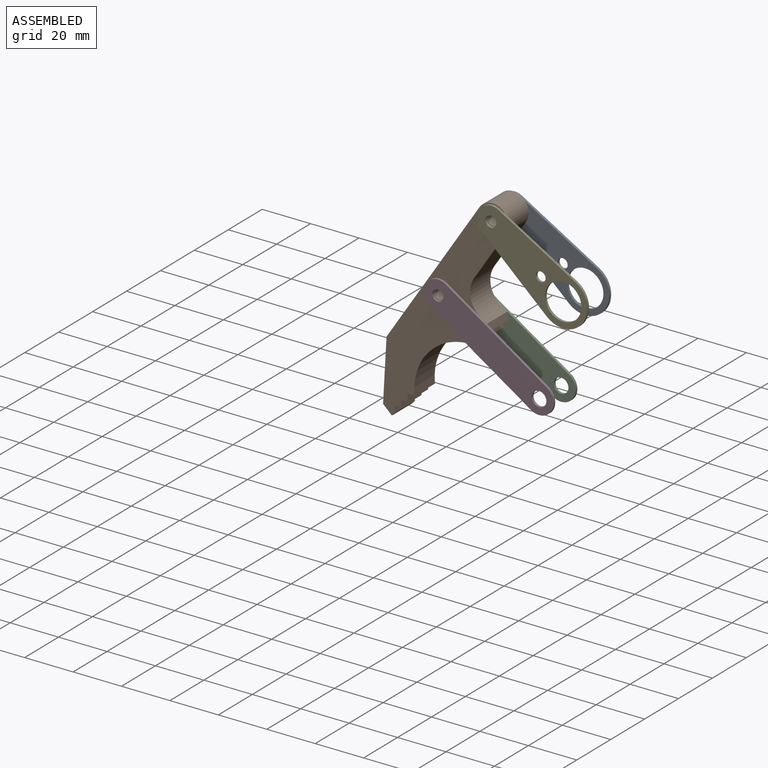
[diagram: assembled view]
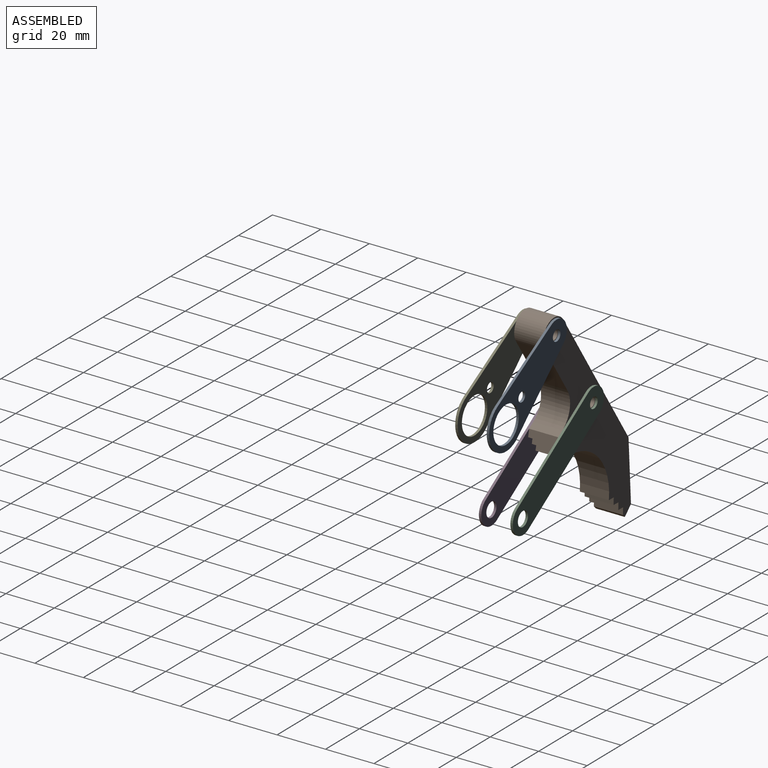
[diagram: assembled view, second angle]
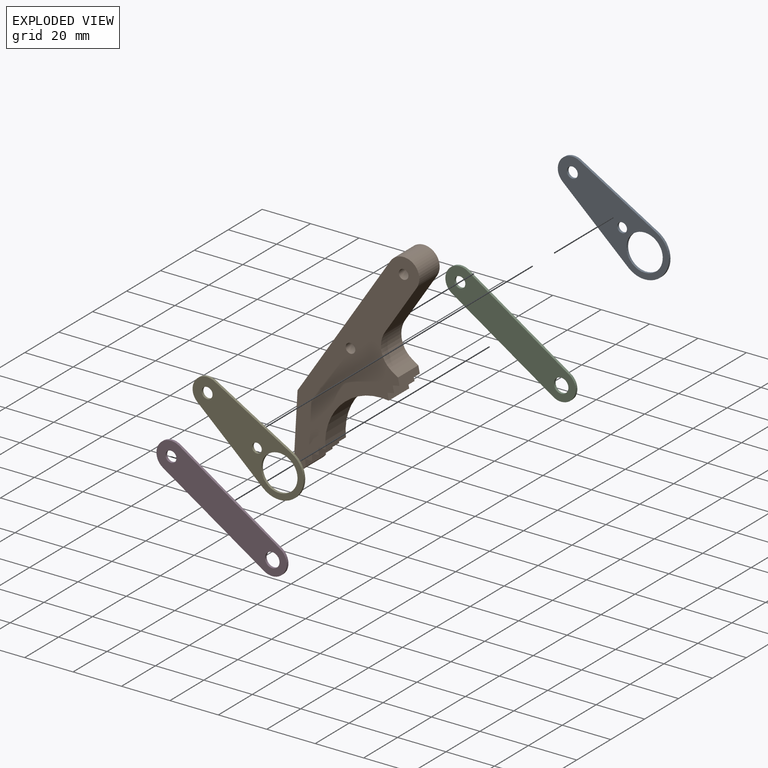
[diagram: exploded view]
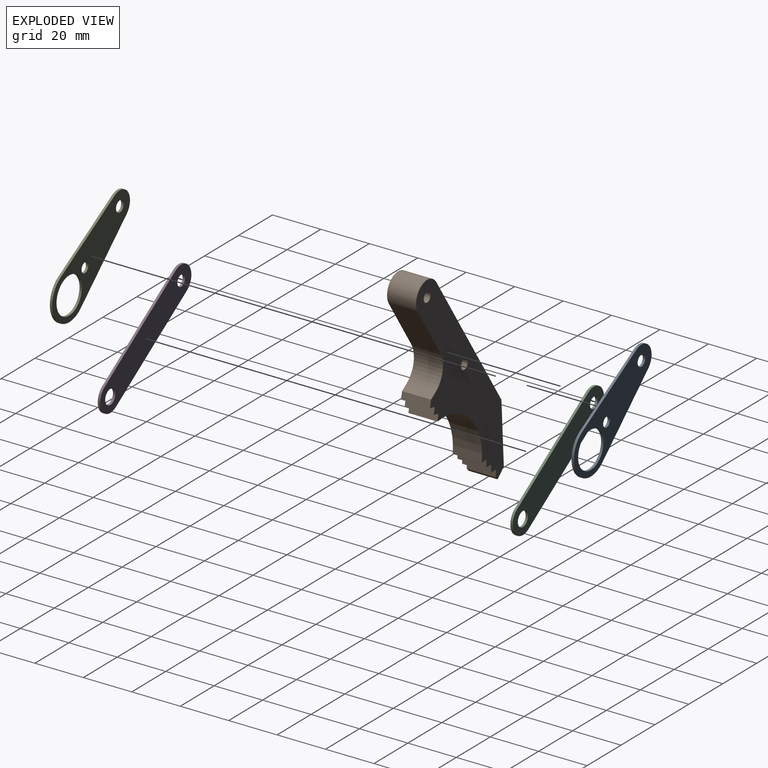
[diagram: exploded view, second angle]
ASSEMBLY  parts=5 mates=4
PART A: 9 faces, bbox 53x1x20 mm
  f0: cylinder r=10mm len=20mm, axis (0,-1,0), area 33.6mm2, adj f1,f5,f7,f8
  f1: plane 36.57x3.98mm, normal (-0.11,0,0.99), area 36.8mm2, adj f0,f2,f7,f8
  f2: cylinder r=6mm len=11.93mm, axis (0,-1,0), area 17.5mm2, adj f1,f5,f7,f8
  f3: cylinder r=2.25mm len=4.5mm, axis (0,-1,0), area 14.1mm2, adj f7,f8
  f4: cylinder r=7.5mm len=15mm, axis (0,-1,0), area 47.1mm2, adj f7,f8
  f5: plane 36.57x3.98mm, normal (-0.11,0,-0.99), area 36.8mm2, adj f0,f2,f7,f8
  f6: cylinder r=2mm len=4mm, axis (0,-1,0), area 12.6mm2, adj f7,f8
  f7: plane 53x20mm, normal (0,1,0), area 603.9mm2, adj f0,f1,f2,f3,f4,f5,f6
  f8: plane 53x20mm, normal (0,-1,0), area 603.9mm2, adj f0,f1,f2,f3,f4,f5,f6
PART B: 24 faces, bbox 28.1x12x99.5 mm
  f0: plane 12x2.35mm, normal (0.83,0,0.56), area 33.9mm2, adj f1,f20,f22,f23
  f1: plane 12x2.35mm, normal (0.56,0,-0.83), area 33.9mm2, adj f0,f2,f22,f23
  f2: cylinder r=23mm len=35.45mm, axis (0,-1,0), area 502.9mm2, adj f1,f3,f22,f23
  f3: plane 12x2mm, normal (0.71,0,0.71), area 33.9mm2, adj f2,f4,f22,f23
  f4: plane 12x2mm, normal (0.71,0,-0.71), area 33.9mm2, adj f3,f5,f22,f23
  f5: plane 12x2mm, normal (0.71,0,0.71), area 33.9mm2, adj f4,f6,f22,f23
  f6: plane 12x2mm, normal (0.71,0,-0.71), area 33.9mm2, adj f5,f7,f22,f23
  f7: plane 12x2.12mm, normal (0.71,0,0.71), area 36mm2, adj f6,f8,f22,f23
  f8: plane 12x3mm, normal (0,0,1), area 36mm2, adj f7,f9,f22,f23
  f9: cylinder r=10mm len=12mm, axis (0,-1,0), area 188.5mm2, adj f8,f10,f22,f23
  f10: plane 24x12mm, normal (1,0,0), area 288mm2, adj f9,f11,f22,f23
  f11: cylinder r=6.5mm len=13mm, axis (0,-1,0), area 245mm2, adj f10,f12,f22,f23
  f12: plane 70x12mm, normal (-1,0,0), area 840mm2, adj f11,f13,f22,f23
  f13: plane 22.08x12.75mm, normal (-0.87,0,-0.5), area 306mm2, adj f12,f14,f22,f23
  f14: plane 12x4.92mm, normal (-0.17,0,-0.98), area 60mm2, adj f13,f15,f22,f23
  f15: plane 12x1.58mm, normal (0.98,0,-0.17), area 19.2mm2, adj f14,f16,f22,f23
  f16: plane 12x2.32mm, normal (0.82,0,0.57), area 33.9mm2, adj f15,f17,f22,f23
  f17: plane 12x2.32mm, normal (0.57,0,-0.82), area 33.9mm2, adj f16,f18,f22,f23
  f18: plane 12x2.32mm, normal (0.82,0,0.57), area 33.9mm2, adj f17,f20,f22,f23
  f19: cylinder r=2mm len=12mm, axis (0,-1,0), area 150.8mm2, adj f22,f23
  f20: plane 12x2.32mm, normal (0.57,0,-0.82), area 33.9mm2, adj f0,f18,f22,f23
  f21: cylinder r=2mm len=12mm, axis (0,-1,0), area 150.8mm2, adj f22,f23
  f22: plane 99.45x28.12mm, normal (0,1,0), area 1494.7mm2, adj f0,f1,f2,f3,f4,f5,f6,f7
  f23: plane 99.45x28.12mm, normal (0,-1,0), area 1494.7mm2, adj f0,f1,f2,f3,f4,f5,f6,f7
PART C: 8 faces, bbox 62x1x12 mm
  f0: plane 50x1mm, normal (0,0,1), area 50mm2, adj f1,f5,f6,f7
  f1: cylinder r=6mm len=12mm, axis (0,-1,0), area 18.8mm2, adj f0,f2,f6,f7
  f2: plane 50x1mm, normal (0,0,-1), area 50mm2, adj f1,f5,f6,f7
  f3: cylinder r=2.25mm len=4.5mm, axis (0,-1,0), area 14.1mm2, adj f6,f7
  f4: cylinder r=3mm len=6mm, axis (0,-1,0), area 18.8mm2, adj f6,f7
  f5: cylinder r=6mm len=12mm, axis (0,-1,0), area 18.8mm2, adj f0,f2,f6,f7
  f6: plane 62x12mm, normal (0,1,0), area 668.9mm2, adj f0,f1,f2,f3,f4,f5
  f7: plane 62x12mm, normal (0,-1,0), area 668.9mm2, adj f0,f1,f2,f3,f4,f5
PART D: same geometry as C
PART E: same geometry as A
PLACE A rot(axis=(0,1,0),36.2deg) t=(44.42,18.64,-29.92)mm
PLACE B rot(axis=(0,1,0),33.2deg) t=(14.58,6.64,-8.04)mm
PLACE C rot(axis=(0,1,0),33.2deg) t=(-7.35,18.64,-41.5)mm
PLACE D rot(axis=(0,1,0),33.2deg) t=(-7.35,5.64,-41.5)mm
PLACE E rot(axis=(0,1,0),36.2deg) t=(44.42,5.64,-29.92)mm fixed
MATE revolute A.f3 <-> B.f19  axis (0,-1,0) through (14.58,18.64,-8.04)mm
MATE revolute D.f1 <-> B.f21  axis (0,1,0) through (-7.35,6.64,-41.5)mm
MATE revolute C.f1 <-> B.f21  axis (0,-1,0) through (-7.35,18.64,-41.5)mm
MATE revolute E.f3 <-> B.f19  axis (0,1,0) through (14.58,6.64,-8.04)mm
